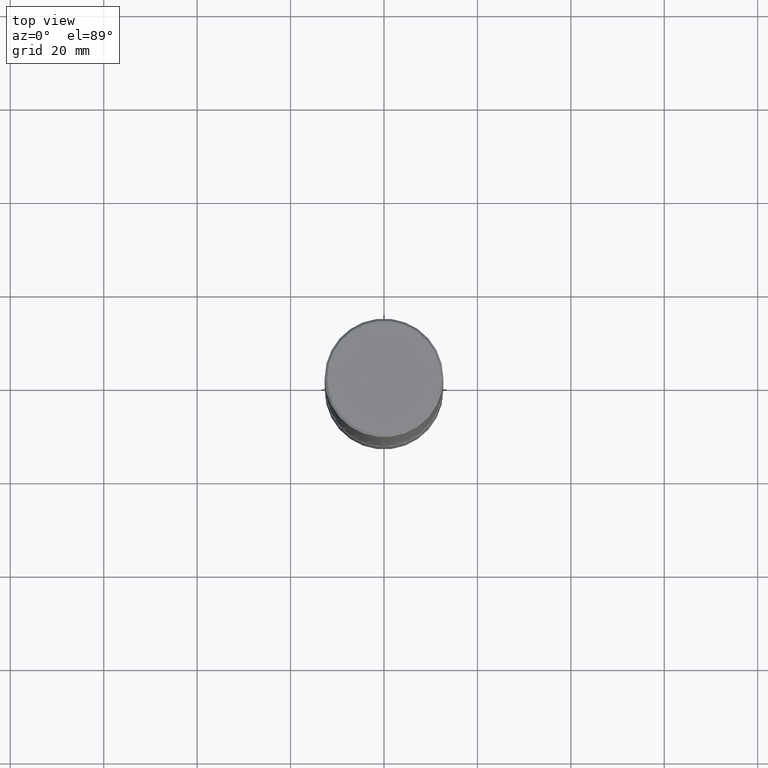
[diagram: clean part render]
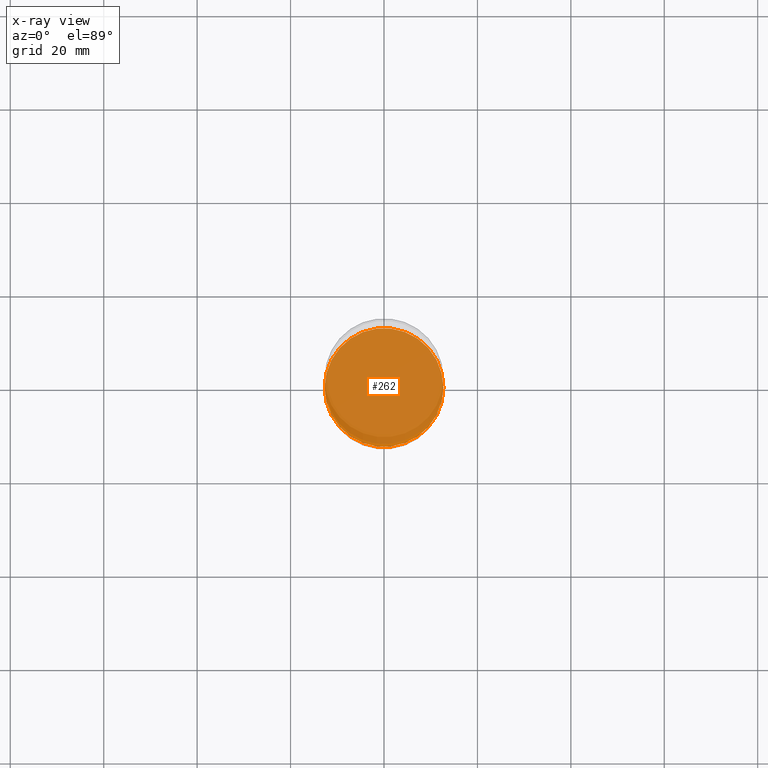
[diagram: x-ray — body ghosted, one internal face saturated and labeled with its STEP entity id]
A machine part, top view, then the same camera in x-ray: the body is ghosted and one INTERNAL B-rep face — a face not visible from any outside direction — is saturated and labeled: STEP entity #262.
In plain terms, the highlighted planar face has unit normal (0, -0, -1).
Its self-contained STEP definition (entity closure, byte-faithful):
#40 = CIRCLE ( 'NONE', #361, 0.5000000000000006661 ) ;
#133 = DIRECTION ( 'NONE',  ( 1.000000000000000000, -6.982962677686265133E-15, 0.000000000000000000 ) ) ;
#143 = DIRECTION ( 'NONE',  ( 1.000000000000000000, -6.982962677686265133E-15, 0.000000000000000000 ) ) ;
#149 = AXIS2_PLACEMENT_3D ( 'NONE', #370, #508, #543 ) ;
#150 = PLANE ( 'NONE',  #149 ) ;
#187 = FACE_OUTER_BOUND ( 'NONE', #363, .T. ) ;
#195 = EDGE_CURVE ( 'NONE', #222, #242, #439, .T. ) ;
#204 = ORIENTED_EDGE ( 'NONE', *, *, #195, .T. ) ;
#222 = VERTEX_POINT ( 'NONE', #450 ) ;
#229 = CARTESIAN_POINT ( 'NONE',  ( 1.161597682937940108E-28, -1.658453635950494339E-14, -4.750000000000000000 ) ) ;
#242 = VERTEX_POINT ( 'NONE', #422 ) ;
#262 = ADVANCED_FACE ( 'NONE', ( #187 ), #150, .F. ) ;
#294 = AXIS2_PLACEMENT_3D ( 'NONE', #229, #445, #143 ) ;
#305 = CARTESIAN_POINT ( 'NONE',  ( 1.161597682937940108E-28, -1.658453635950494339E-14, -4.750000000000000000 ) ) ;
#361 = AXIS2_PLACEMENT_3D ( 'NONE', #305, #498, #133 ) ;
#363 = EDGE_LOOP ( 'NONE', ( #434, #204 ) ) ;
#370 = CARTESIAN_POINT ( 'NONE',  ( 1.161597682937940108E-28, -1.658453635950494339E-14, -4.750000000000000000 ) ) ;
#422 = CARTESIAN_POINT ( 'NONE',  ( 0.5000000000000006661, -2.007601769834807990E-14, -4.750000000000000000 ) ) ;
#434 = ORIENTED_EDGE ( 'NONE', *, *, #461, .T. ) ;
#439 = CIRCLE ( 'NONE', #294, 0.5000000000000006661 ) ;
#445 = DIRECTION ( 'NONE',  ( -2.445468806185136597E-29, 3.491481338843145583E-15, 1.000000000000000000 ) ) ;
#450 = CARTESIAN_POINT ( 'NONE',  ( -0.5000000000000006661, -1.516162629739875255E-14, -4.750000000000000000 ) ) ;
#461 = EDGE_CURVE ( 'NONE', #242, #222, #40, .T. ) ;
#498 = DIRECTION ( 'NONE',  ( -2.445468806185136597E-29, 3.491481338843145583E-15, 1.000000000000000000 ) ) ;
#508 = DIRECTION ( 'NONE',  ( 2.438088387897960049E-29, -3.491481338843145188E-15, -1.000000000000000000 ) ) ;
#543 = DIRECTION ( 'NONE',  ( -1.000000000000000000, 6.982962677686265922E-15, -4.876176775795935793E-29 ) ) ;